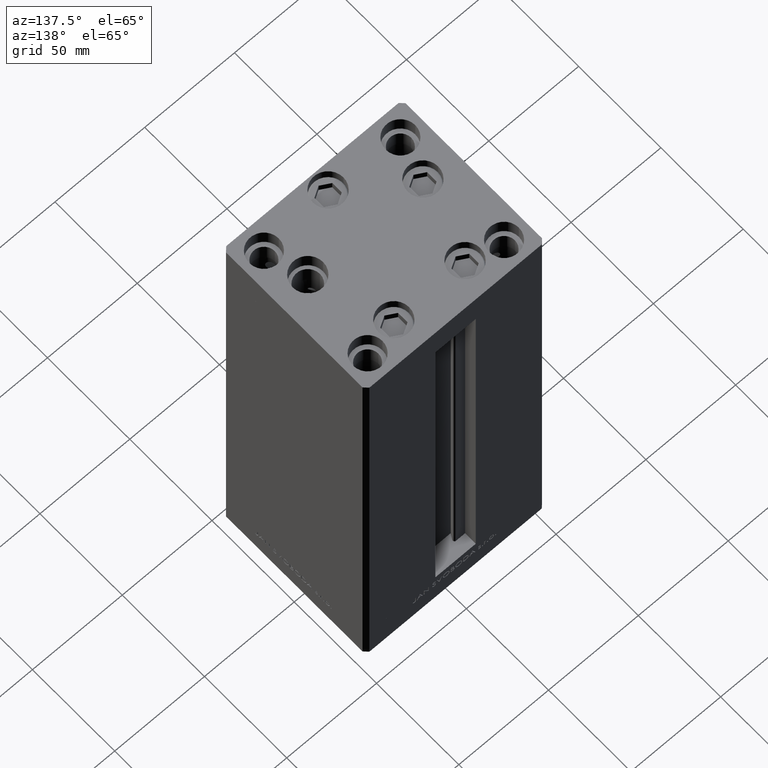
[diagram: clean part render]
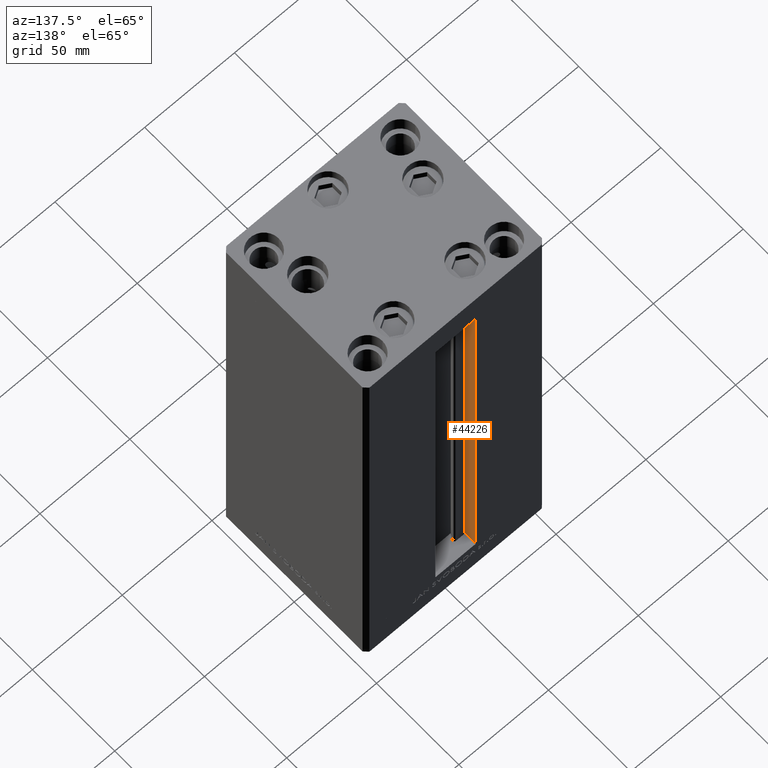
[diagram: same view with one face highlighted and labeled with its STEP entity id]
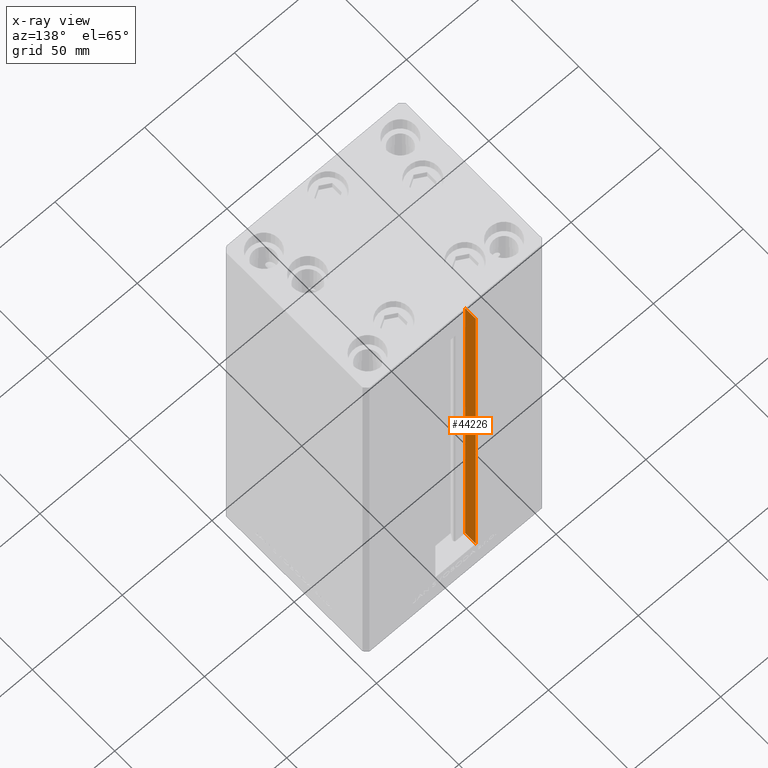
[diagram: x-ray of the same camera — body ghosted, the highlighted face saturated]
A machine part, auxiliary view. The second image highlights one B-rep face of the part: STEP entity #44226.
The next image is the same camera in x-ray: the body ghosted, the highlighted face saturated — about 0% of this face is hidden behind the body in this view.
In plain terms, the highlighted planar face has unit normal (-1, 0, 0).
Its self-contained STEP definition (entity closure, byte-faithful):
#1071 = ORIENTED_EDGE ( 'NONE', *, *, #49259, .T. ) ;
#1664 = LINE ( 'NONE', #17590, #21978 ) ;
#3386 = EDGE_CURVE ( 'NONE', #31956, #32899, #49788, .T. ) ;
#6294 = ORIENTED_EDGE ( 'NONE', *, *, #3386, .F. ) ;
#7197 = LINE ( 'NONE', #18852, #44570 ) ;
#7224 = DIRECTION ( 'NONE',  ( -0.000000000000000000, -0.000000000000000000, 1.000000000000000000 ) ) ;
#9175 = DIRECTION ( 'NONE',  ( 0.000000000000000000, 1.000000000000000000, 0.000000000000000000 ) ) ;
#9551 = CARTESIAN_POINT ( 'NONE',  ( -11.24999999999999822, 43.50000000000000000, 218.5000000000000000 ) ) ;
#9745 = DIRECTION ( 'NONE',  ( -0.000000000000000000, -0.000000000000000000, 1.000000000000000000 ) ) ;
#11041 = PLANE ( 'NONE',  #49457 ) ;
#12735 = CARTESIAN_POINT ( 'NONE',  ( -11.24999999999999822, 0.000000000000000000, 218.5000000000000000 ) ) ;
#13806 = CARTESIAN_POINT ( 'NONE',  ( -11.24999999999999822, 36.99999999999999289, 0.000000000000000000 ) ) ;
#14976 = VERTEX_POINT ( 'NONE', #37194 ) ;
#15246 = VERTEX_POINT ( 'NONE', #9551 ) ;
#15754 = ORIENTED_EDGE ( 'NONE', *, *, #43592, .F. ) ;
#17590 = CARTESIAN_POINT ( 'NONE',  ( -11.24999999999999822, 43.50000000000000000, 0.000000000000000000 ) ) ;
#18125 = LINE ( 'NONE', #12735, #25165 ) ;
#18852 = CARTESIAN_POINT ( 'NONE',  ( -11.24999999999999822, 36.99999999999999289, 0.000000000000000000 ) ) ;
#21978 = VECTOR ( 'NONE', #9745, 1000.000000000000000 ) ;
#25165 = VECTOR ( 'NONE', #9175, 1000.000000000000000 ) ;
#25969 = CARTESIAN_POINT ( 'NONE',  ( -11.24999999999999822, 36.99999999999999289, 0.000000000000000000 ) ) ;
#26487 = DIRECTION ( 'NONE',  ( 0.000000000000000000, 0.000000000000000000, 1.000000000000000000 ) ) ;
#26580 = EDGE_LOOP ( 'NONE', ( #6294, #15754, #1071, #28059 ) ) ;
#28059 = ORIENTED_EDGE ( 'NONE', *, *, #47598, .F. ) ;
#29998 = CARTESIAN_POINT ( 'NONE',  ( -11.24999999999999822, 36.99999999999999289, 0.000000000000000000 ) ) ;
#31956 = VERTEX_POINT ( 'NONE', #13806 ) ;
#32899 = VERTEX_POINT ( 'NONE', #35820 ) ;
#33836 = FACE_OUTER_BOUND ( 'NONE', #26580, .T. ) ;
#35820 = CARTESIAN_POINT ( 'NONE',  ( -11.24999999999999822, 36.99999999999999289, 218.5000000000000000 ) ) ;
#37194 = CARTESIAN_POINT ( 'NONE',  ( -11.24999999999999822, 43.50000000000000000, 0.000000000000000000 ) ) ;
#38398 = DIRECTION ( 'NONE',  ( -1.000000000000000000, 0.000000000000000000, 0.000000000000000000 ) ) ;
#43592 = EDGE_CURVE ( 'NONE', #14976, #31956, #7197, .T. ) ;
#44226 = ADVANCED_FACE ( 'NONE', ( #33836 ), #11041, .F. ) ;
#44570 = VECTOR ( 'NONE', #49243, 1000.000000000000000 ) ;
#45579 = VECTOR ( 'NONE', #7224, 1000.000000000000000 ) ;
#47598 = EDGE_CURVE ( 'NONE', #32899, #15246, #18125, .T. ) ;
#49243 = DIRECTION ( 'NONE',  ( -0.000000000000000000, -1.000000000000000000, -0.000000000000000000 ) ) ;
#49259 = EDGE_CURVE ( 'NONE', #14976, #15246, #1664, .T. ) ;
#49457 = AXIS2_PLACEMENT_3D ( 'NONE', #25969, #38398, #26487 ) ;
#49788 = LINE ( 'NONE', #29998, #45579 ) ;